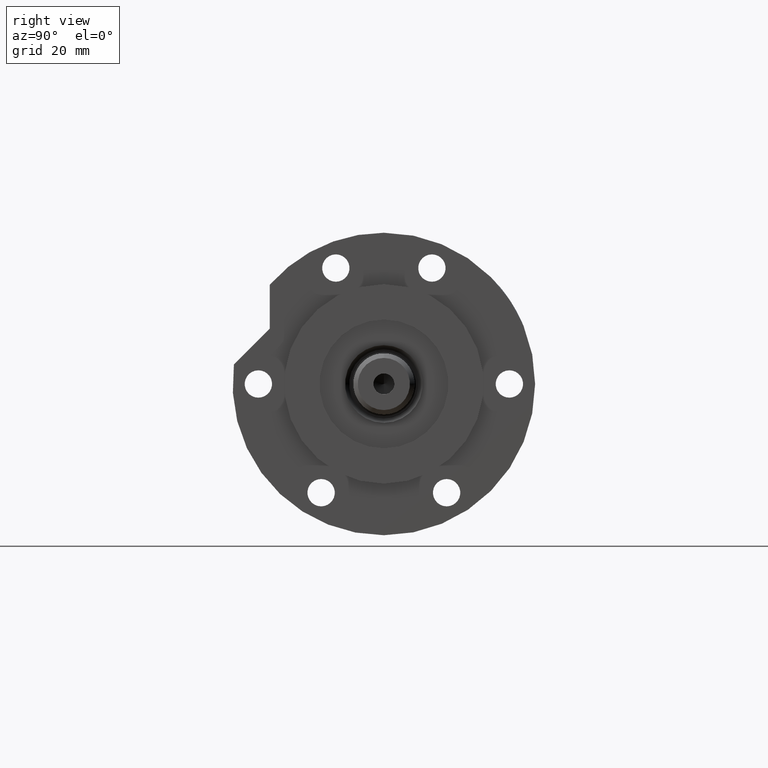
[diagram: clean part render]
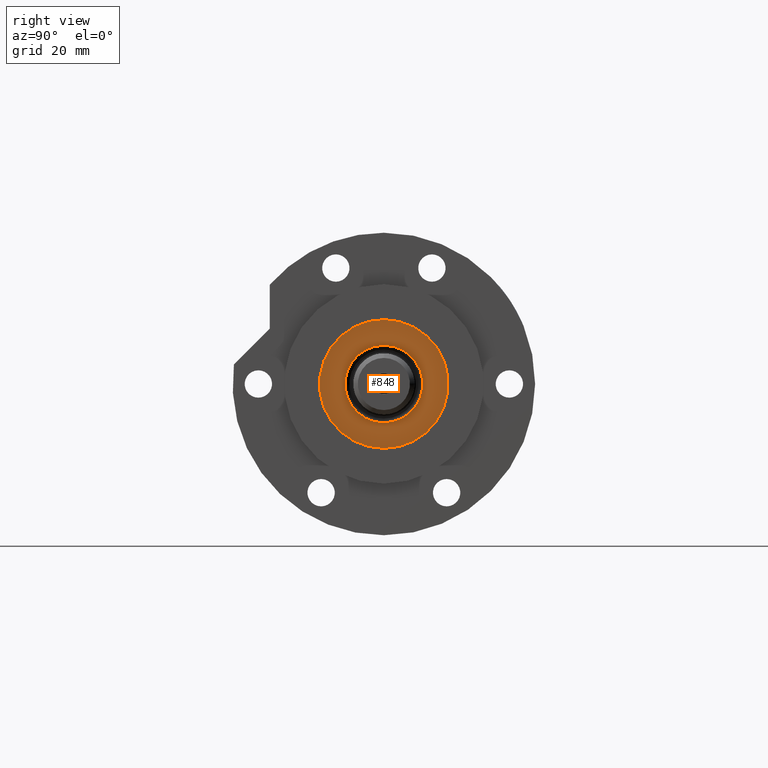
[diagram: same view with one face highlighted and labeled with its STEP entity id]
A machine part, right view. The second image highlights one B-rep face of the part: STEP entity #848.
In plain terms, the highlighted planar face has unit normal (1, 0, -0).
Its self-contained STEP definition (entity closure, byte-faithful):
#159 = EDGE_CURVE ( 'NONE', #5931, #938, #1332, .T. ) ;
#197 = DIRECTION ( 'NONE',  ( 1.000000000000000000, 0.000000000000000000, 0.000000000000000000 ) ) ;
#243 = EDGE_CURVE ( 'NONE', #4179, #3341, #4440, .T. ) ;
#297 = DIRECTION ( 'NONE',  ( 1.000000000000000000, 0.000000000000000000, -0.000000000000000000 ) ) ;
#394 = AXIS2_PLACEMENT_3D ( 'NONE', #5330, #2351, #784 ) ;
#697 = CARTESIAN_POINT ( 'NONE',  ( -19.99999999999999645, 0.000000000000000000, 33.50000000000000000 ) ) ;
#770 = CARTESIAN_POINT ( 'NONE',  ( 12.05000000000000426, 0.000000000000000000, 33.50000000000000000 ) ) ;
#784 = DIRECTION ( 'NONE',  ( 1.000000000000000000, 0.000000000000000000, 0.000000000000000000 ) ) ;
#848 = ADVANCED_FACE ( 'NONE', ( #3693, #3270 ), #4689, .T. ) ;
#938 = VERTEX_POINT ( 'NONE', #697 ) ;
#1263 = CARTESIAN_POINT ( 'NONE',  ( 0.000000000000000000, 0.000000000000000000, 33.50000000000000000 ) ) ;
#1332 = CIRCLE ( 'NONE', #2468, 19.99999999999999645 ) ;
#1390 = EDGE_LOOP ( 'NONE', ( #2360, #5943 ) ) ;
#1548 = AXIS2_PLACEMENT_3D ( 'NONE', #1263, #5208, #297 ) ;
#1562 = CIRCLE ( 'NONE', #394, 19.99999999999999645 ) ;
#2182 = EDGE_CURVE ( 'NONE', #938, #5931, #1562, .T. ) ;
#2351 = DIRECTION ( 'NONE',  ( 0.000000000000000000, 0.000000000000000000, 1.000000000000000000 ) ) ;
#2360 = ORIENTED_EDGE ( 'NONE', *, *, #2182, .T. ) ;
#2388 = DIRECTION ( 'NONE',  ( -0.000000000000000000, -0.000000000000000000, -1.000000000000000000 ) ) ;
#2409 = ORIENTED_EDGE ( 'NONE', *, *, #243, .T. ) ;
#2468 = AXIS2_PLACEMENT_3D ( 'NONE', #2695, #4128, #197 ) ;
#2494 = DIRECTION ( 'NONE',  ( 1.000000000000000000, 0.000000000000000000, 0.000000000000000000 ) ) ;
#2525 = CIRCLE ( 'NONE', #4819, 12.05000000000000426 ) ;
#2695 = CARTESIAN_POINT ( 'NONE',  ( 0.000000000000000000, 0.000000000000000000, 33.50000000000000000 ) ) ;
#2969 = EDGE_LOOP ( 'NONE', ( #5254, #2409 ) ) ;
#2997 = CARTESIAN_POINT ( 'NONE',  ( 0.000000000000000000, 0.000000000000000000, 33.50000000000000000 ) ) ;
#3067 = EDGE_CURVE ( 'NONE', #3341, #4179, #2525, .T. ) ;
#3270 = FACE_OUTER_BOUND ( 'NONE', #1390, .T. ) ;
#3341 = VERTEX_POINT ( 'NONE', #770 ) ;
#3693 = FACE_BOUND ( 'NONE', #2969, .T. ) ;
#4128 = DIRECTION ( 'NONE',  ( 0.000000000000000000, 0.000000000000000000, 1.000000000000000000 ) ) ;
#4179 = VERTEX_POINT ( 'NONE', #4371 ) ;
#4371 = CARTESIAN_POINT ( 'NONE',  ( -12.05000000000000426, 1.475699392972560823E-15, 33.50000000000000000 ) ) ;
#4440 = CIRCLE ( 'NONE', #6444, 12.05000000000000426 ) ;
#4508 = DIRECTION ( 'NONE',  ( -0.000000000000000000, -0.000000000000000000, -1.000000000000000000 ) ) ;
#4617 = CARTESIAN_POINT ( 'NONE',  ( 19.99999999999999645, 2.449293598294706119E-15, 33.50000000000000000 ) ) ;
#4689 = PLANE ( 'NONE',  #1548 ) ;
#4819 = AXIS2_PLACEMENT_3D ( 'NONE', #6070, #4508, #2494 ) ;
#4997 = DIRECTION ( 'NONE',  ( 1.000000000000000000, 0.000000000000000000, 0.000000000000000000 ) ) ;
#5208 = DIRECTION ( 'NONE',  ( 0.000000000000000000, 0.000000000000000000, 1.000000000000000000 ) ) ;
#5254 = ORIENTED_EDGE ( 'NONE', *, *, #3067, .T. ) ;
#5330 = CARTESIAN_POINT ( 'NONE',  ( 0.000000000000000000, 0.000000000000000000, 33.50000000000000000 ) ) ;
#5931 = VERTEX_POINT ( 'NONE', #4617 ) ;
#5943 = ORIENTED_EDGE ( 'NONE', *, *, #159, .T. ) ;
#6070 = CARTESIAN_POINT ( 'NONE',  ( 0.000000000000000000, 0.000000000000000000, 33.50000000000000000 ) ) ;
#6444 = AXIS2_PLACEMENT_3D ( 'NONE', #2997, #2388, #4997 ) ;